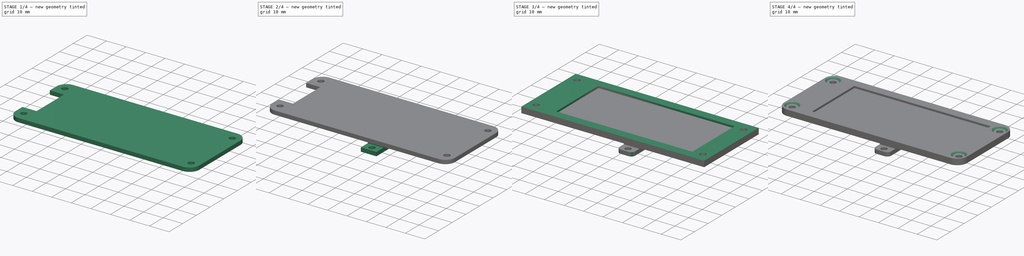
[diagram: build sequence overview — one tinted view per stage of 4, left to right]
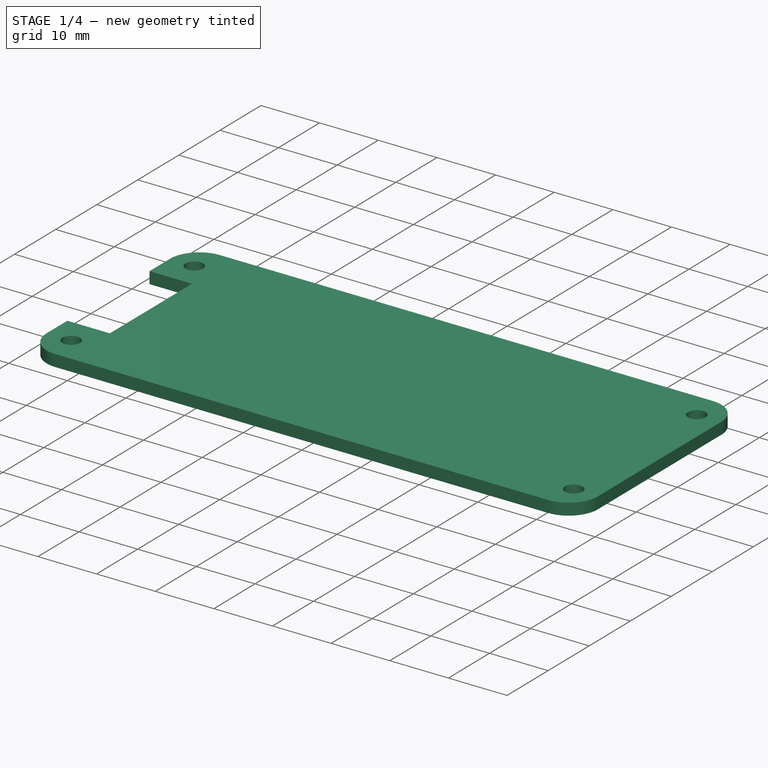
[diagram: stage 1 of 4 — iso view after this stage's code; geometry added in this stage tinted green]
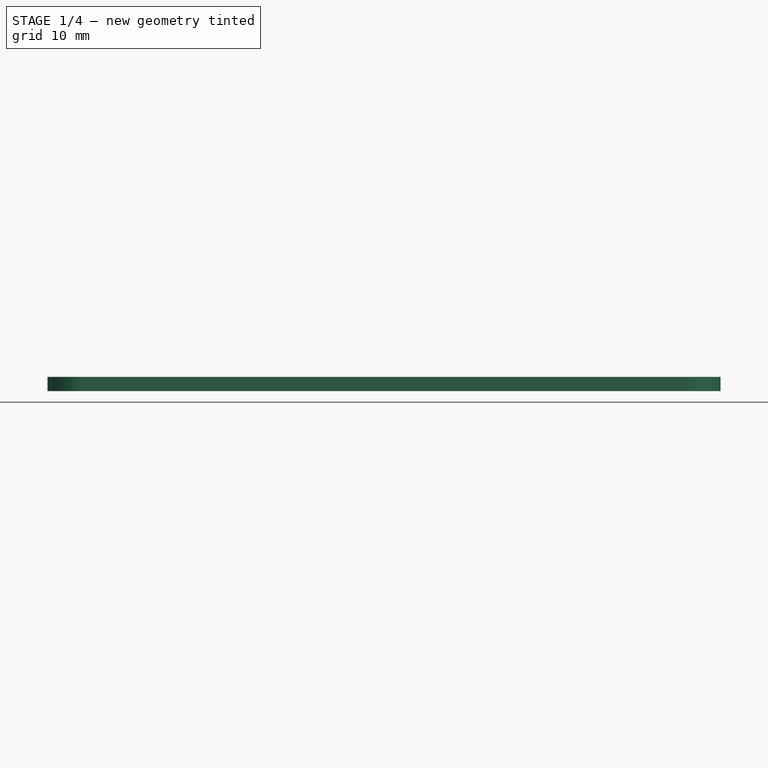
[diagram: stage 1 of 4 — front view after this stage's code; geometry added in this stage tinted green]
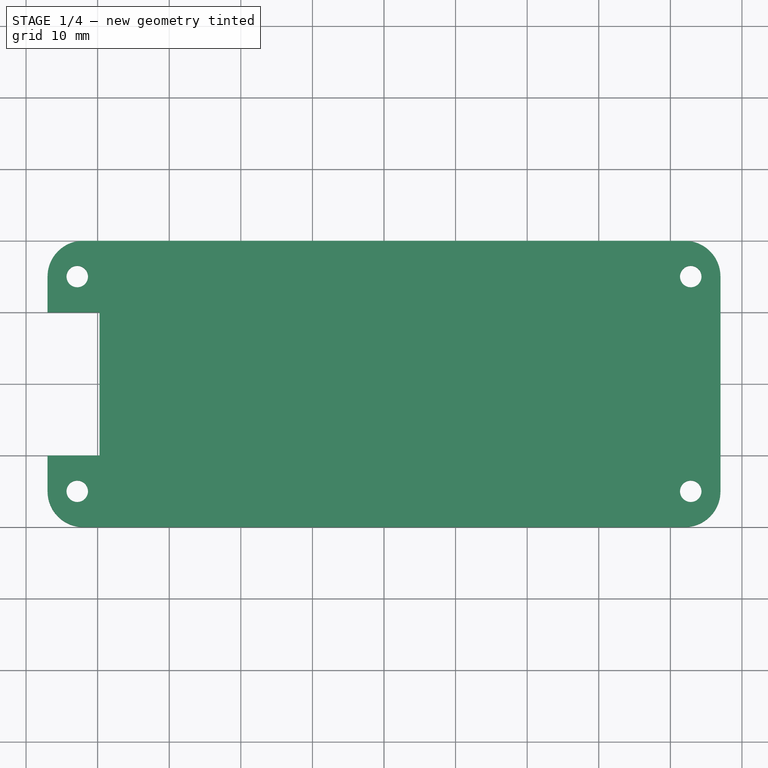
[diagram: stage 1 of 4 — top view after this stage's code; geometry added in this stage tinted green]
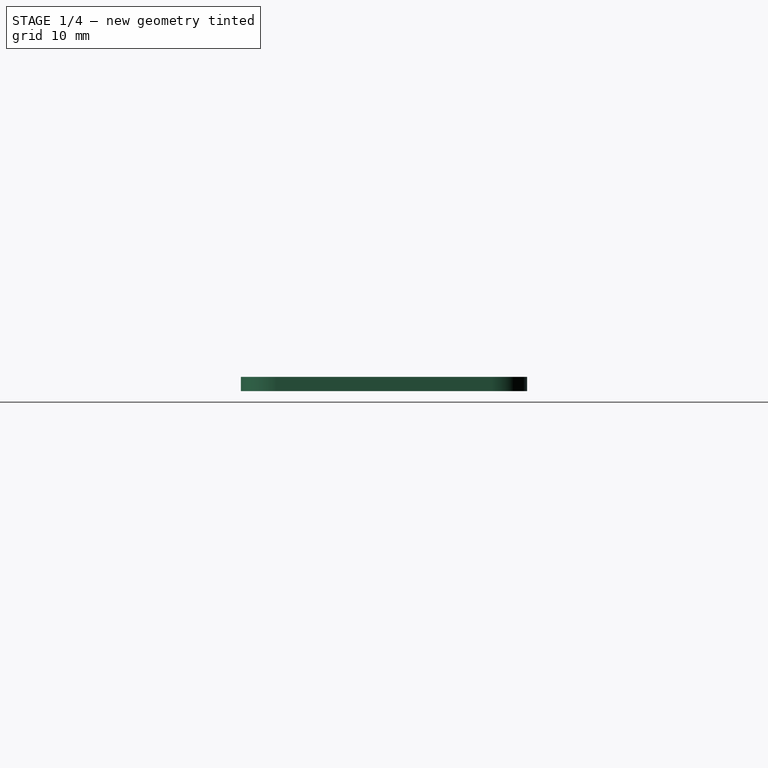
[diagram: stage 1 of 4 — right view after this stage's code; geometry added in this stage tinted green]
FCSTD DOCUMENT  (FreeCAD 0.19R)
Label: Assemblage_PCB_ecran
License: All rights reserved
LicenseURL: http://en.wikipedia.org/wiki/All_rights_reserved
objects: Sketcher::SketchObject×13, PartDesign::Pad×8, PartDesign::Fillet×6, PartDesign::Pocket×5, PartDesign::Body×5, PartDesign::Chamfer×1, App::VRMLObject×1
note: 58 computed .brp shape members not serialized (recipe doc carries the construction recipe); baked Part::Feature solids carry a one-line shape summary decoded from their .brp

FEATURE [Sketcher::SketchObject] Sketch
  FullyConstrained = true
  MapMode = 5
  Support = -> [XY_Plane]
  sketch-geometry (17):
    g0: LineSegment StartX=-47 StartY=20 StartZ=0 EndX=47 EndY=20 EndZ=0
    g1: LineSegment StartX=47 StartY=20 StartZ=0 EndX=47 EndY=-20 EndZ=0
    g2: LineSegment StartX=47 StartY=-20 StartZ=0 EndX=-47 EndY=-20 EndZ=0
    g3: LineSegment StartX=-39.75 StartY=18.75 StartZ=0 EndX=39.75 EndY=18.75 EndZ=0
    g4: LineSegment StartX=39.75 StartY=18.75 StartZ=0 EndX=39.75 EndY=-18.75 EndZ=0
    g5: LineSegment StartX=39.75 StartY=-18.75 StartZ=0 EndX=-39.75 EndY=-18.75 EndZ=0
    g6: LineSegment StartX=-39.75 StartY=-18.75 StartZ=0 EndX=-39.75 EndY=18.75 EndZ=0
    g7: Circle CenterX=-42.85 CenterY=15 CenterZ=0 NormalX=0 NormalY=0 NormalZ=1 AngleXU=0 Radius=1.5
    g8: Circle CenterX=-42.85 CenterY=-15 CenterZ=0 NormalX=0 NormalY=0 NormalZ=1 AngleXU=0 Radius=1.5
    g9: Circle CenterX=42.85 CenterY=-15 CenterZ=0 NormalX=0 NormalY=0 NormalZ=1 AngleXU=0 Radius=1.5
    g10: Circle CenterX=42.85 CenterY=15 CenterZ=0 NormalX=0 NormalY=0 NormalZ=1 AngleXU=0 Radius=1.5
    g11: Circle CenterX=-42.85 CenterY=15 CenterZ=0 NormalX=0 NormalY=0 NormalZ=1 AngleXU=0 Radius=3
    g12: LineSegment StartX=-47 StartY=20 StartZ=0 EndX=-47 EndY=10 EndZ=0
    g13: LineSegment StartX=-47 StartY=10 StartZ=0 EndX=-39.75 EndY=10 EndZ=0
    g14: LineSegment StartX=-39.75 StartY=10 StartZ=0 EndX=-39.75 EndY=-10 EndZ=0
    g15: LineSegment StartX=-39.75 StartY=-10 StartZ=0 EndX=-47 EndY=-10 EndZ=0
    g16: LineSegment StartX=-47 StartY=-10 StartZ=0 EndX=-47 EndY=-20 EndZ=0
  constraints (44):
    c: Coincident(g0,g1)
    c: Coincident(g1,g2)
    c: Horizontal(g0)
    c: Horizontal(g2)
    c: Vertical(g1)
    c: Symmetric(g0,g1,g-1)
    c: DistanceY(g1,g1) = 40
    c: DistanceX(g0,g0) = 94
    c: Coincident(g3,g4)
    c: Coincident(g4,g5)
    c: Coincident(g5,g6)
    c: Coincident(g6,g3)
    c: Horizontal(g3)
    c: Horizontal(g5)
    c: Vertical(g4)
    c: Vertical(g6)
    c: Symmetric(g3,g4,g-1)
    c: DistanceY(g6,g6) = 37.5
    c: DistanceX(g3,g3) = 79.5
    c: Radius(g10) = 1.5
    c: Equal(g10,g9)
    c: Equal(g10,g8)
    c: Equal(g10,g7)
    c: Symmetric(g7,g8,g-1)
    c: Symmetric(g10,g9,g-1)
    c: Symmetric(g10,g7,g-2)
    c: Coincident(g11,g7)
    c: Radius(g11) = 3
    c: Coincident(g0,g12)
    c: Vertical(g12)
    c: Coincident(g12,g13)
    c: Horizontal(g13)
    c: Coincident(g13,g14)
    c: Vertical(g14)
    c: Coincident(g14,g15)
    c: Horizontal(g15)
    c: Coincident(g15,g16)
    c: Coincident(g16,g2)
    c: Vertical(g16)
    c: Symmetric(g15,g12,g-1)
    c: PointOnObject(g13,g6)
    c: DistanceY(g14,g14) = 20
    c: DistanceY(g-1,g7) = 15
    c: DistanceX(g-2,g7) = -42.85
FEATURE [PartDesign::Pad] Pad
  AllowMultiFace = false
  Direction = (1,1,1)
  Length = 2
  Length2 = 100
  Profile = -> Sketch
  Type = 0
FEATURE [PartDesign::Fillet] Fillet001
  Base = -> Pad [Edge8,Edge5,Edge11,Edge1]
  BaseFeature = -> Pad
  Radius = 5
  SupportTransform = false
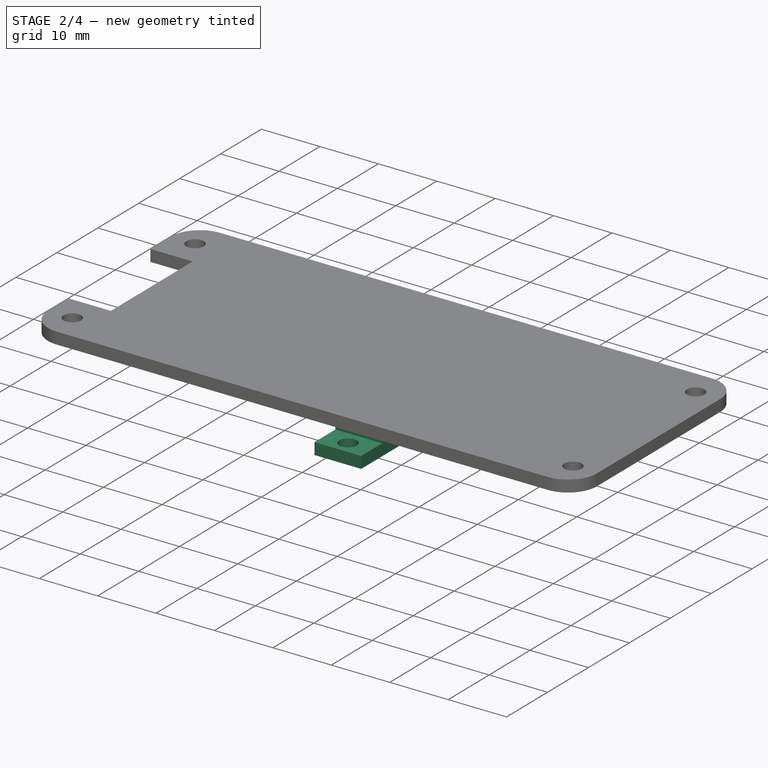
[diagram: stage 2 of 4 — iso view after this stage's code; geometry added in this stage tinted green]
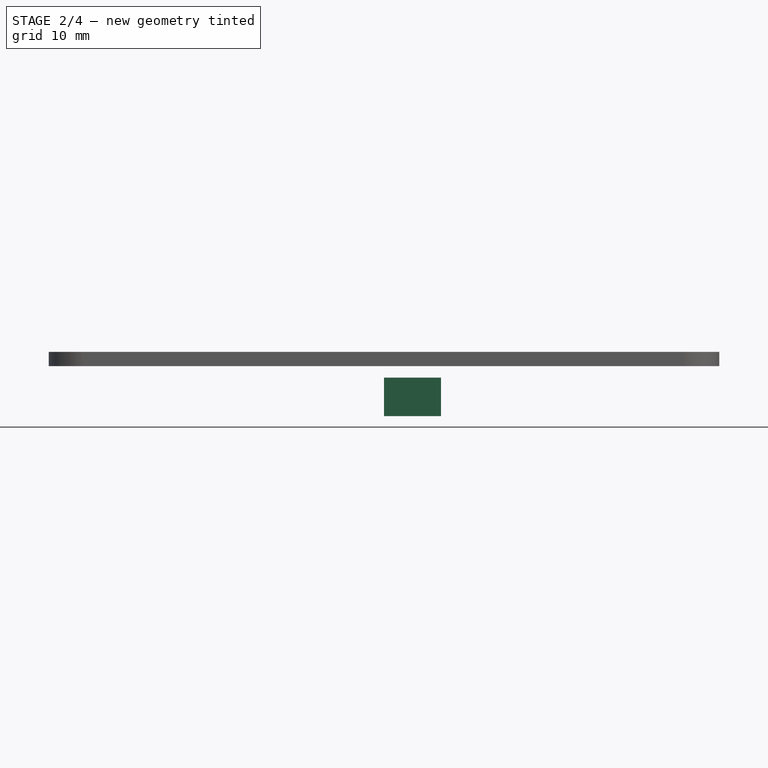
[diagram: stage 2 of 4 — front view after this stage's code; geometry added in this stage tinted green]
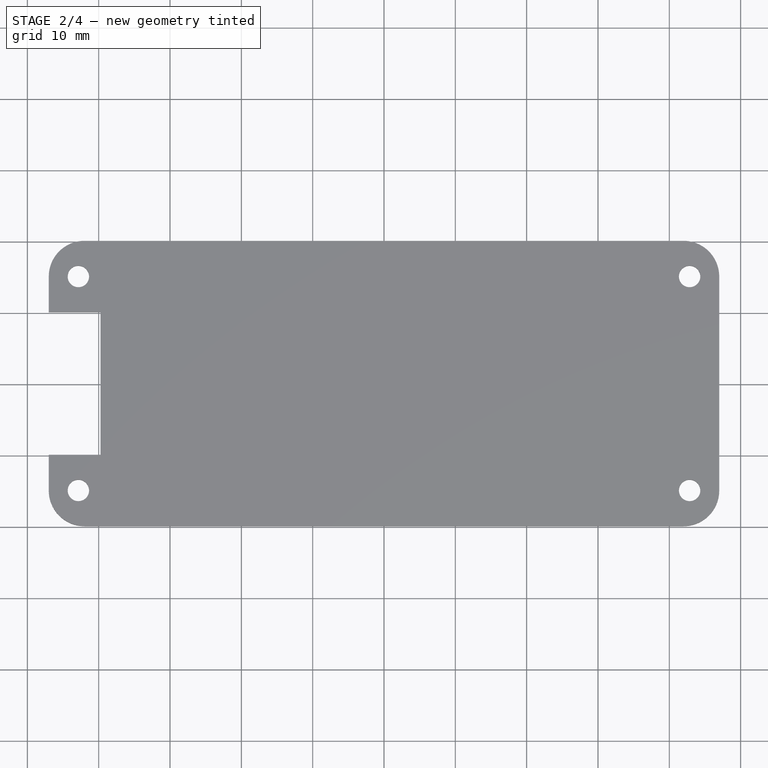
[diagram: stage 2 of 4 — top view after this stage's code; geometry added in this stage tinted green]
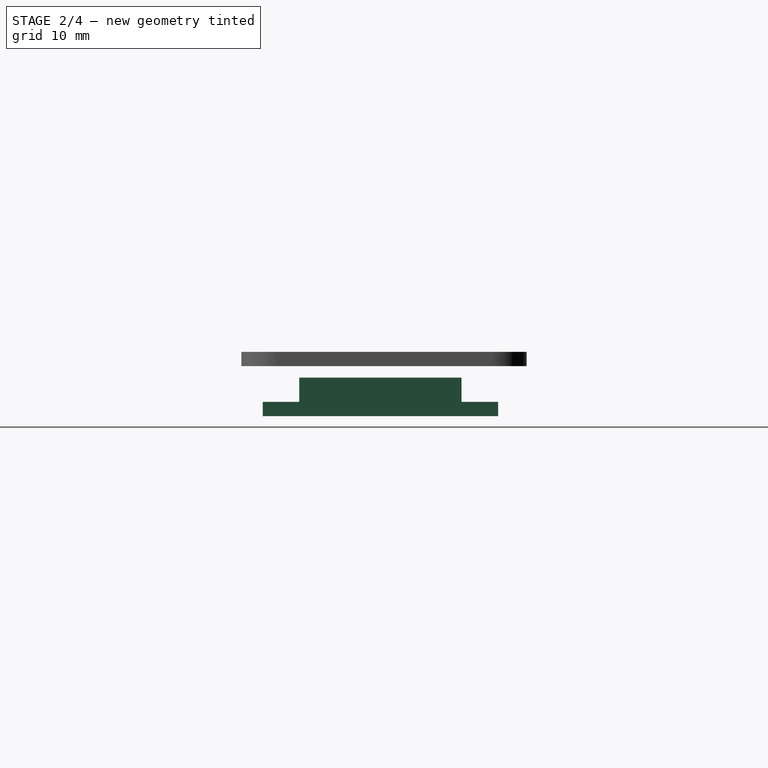
[diagram: stage 2 of 4 — right view after this stage's code; geometry added in this stage tinted green]
FEATURE [PartDesign::Body] Body001  label="Devant"
  Group = -> [Sketch001,Pad001,Sketch002,Pocket,Fillet,Chamfer]
  Origin = -> Origin001
  Placement = pos=(0,5,2) rot=(0,0,1;0rad)
  Tip = -> Chamfer
FEATURE [Sketcher::SketchObject] Sketch003
  ExternalGeometry = -> [Fillet001]
  FullyConstrained = true
  MapMode = 5
  Placement = pos=(0,0,0) rot=(1,0,0;3.14159rad)
  Support = -> [Fillet001]
  sketch-geometry (4):
    g0: LineSegment StartX=-38.75 StartY=12 StartZ=0 EndX=3.25 EndY=12 EndZ=0
    g1: LineSegment StartX=3.25 StartY=12 StartZ=0 EndX=3.25 EndY=-11 EndZ=0
    g2: LineSegment StartX=3.25 StartY=-11 StartZ=0 EndX=-38.75 EndY=-11 EndZ=0
    g3: LineSegment StartX=-38.75 StartY=-11 StartZ=0 EndX=-38.75 EndY=12 EndZ=0
  constraints (12):
    c: Coincident(g0,g1)
    c: Coincident(g1,g2)
    c: Coincident(g2,g3)
    c: Coincident(g3,g0)
    c: Horizontal(g0)
    c: Horizontal(g2)
    c: Vertical(g1)
    c: Vertical(g3)
    c: DistanceY(g1,g1) = 23
    c: DistanceX(g0,g0) = 42
    c: DistanceY(g-1,g0) = 12
    c: Distance(g0,g-3) = 1
FEATURE [PartDesign::Pocket] Pocket001
  AllowMultiFace = false
  BaseFeature = -> Fillet001
  Length = 1.5
  Length2 = 100
  Profile = -> Sketch003
  Type = 0
FEATURE [Sketcher::SketchObject] Sketch005
  FullyConstrained = false
  MapMode = 5
  Placement = pos=(0,0,0) rot=(0.57735,0.57735,0.57735;2.0944rad)
  Support = -> [YZ_Plane002]
  sketch-geometry (8):
    g0: LineSegment StartX=-17 StartY=-5 StartZ=0 EndX=-11.875 EndY=-5 EndZ=0
    g1: LineSegment StartX=-11.875 StartY=-5 StartZ=0 EndX=-11.875 EndY=-1.6 EndZ=0
    g2: LineSegment StartX=-11.875 StartY=-1.6 StartZ=0 EndX=10.875 EndY=-1.6 EndZ=0
    g3: LineSegment StartX=10.875 StartY=-1.6 StartZ=0 EndX=10.875 EndY=-5 EndZ=0
    g4: LineSegment StartX=10.875 StartY=-5 StartZ=0 EndX=16 EndY=-5 EndZ=0
    g5: LineSegment StartX=16 StartY=-5 StartZ=0 EndX=16 EndY=-7 EndZ=0
    g6: LineSegment StartX=16 StartY=-7 StartZ=0 EndX=-17 EndY=-7 EndZ=0
    g7: LineSegment StartX=-17 StartY=-7 StartZ=0 EndX=-17 EndY=-5 EndZ=0
  constraints (24):
    c: Horizontal(g0)
    c: Coincident(g0,g1)
    c: Vertical(g1)
    c: Coincident(g1,g2)
    c: Horizontal(g2)
    c: Coincident(g2,g3)
    c: Vertical(g3)
    c: Coincident(g3,g4)
    c: Horizontal(g4)
    c: Coincident(g4,g5)
    c: Vertical(g5)
    c: Coincident(g5,g6)
    c: Horizontal(g6)
    c: Coincident(g6,g7)
    c: Coincident(g7,g0)
    c: Vertical(g7)
    c: DistanceY(g7,g7) = 2
    c: DistanceY(g1,g1) = 3.4
    c: DistanceX(g2,g2) = 22.75
    c: DistanceX(g0,g0) = 5.125
    c: Equal(g0,g4)
    c: Equal(g5,g7)
    c: DistanceY(g-1,g0) = -5
    c: DistanceX(g-2,g6) = -17
FEATURE [PartDesign::Pad] Pad003
  AllowMultiFace = false
  Direction = (1,1,1)
  Length = 8
  Length2 = 100
  Placement = pos=(0,0,0) rot=(0.57735,0.57735,0.57735;2.0944rad)
  Profile = -> Sketch005
  Type = 0
FEATURE [Sketcher::SketchObject] Sketch006
  ExternalGeometry = -> [Pad003]
  FullyConstrained = false
  MapMode = 5
  Placement = pos=(2e-15,-3.1e-15,-7) rot=(0.707107,0.707107,0;3.14159rad)
  Support = -> [Pad003]
  sketch-geometry (2):
    g0: Circle CenterX=-14.5 CenterY=4 CenterZ=0 NormalX=0 NormalY=0 NormalZ=1 AngleXU=0 Radius=1.5
    g1: Circle CenterX=13.5 CenterY=4 CenterZ=0 NormalX=0 NormalY=0 NormalZ=1 AngleXU=0 Radius=1.5
  constraints (6):
    c: Radius(g1) = 1.5
    c: Equal(g1,g0)
    c: DistanceY(g-1,g1) = 4
    c: DistanceY(g-1,g0) = 4
    c: Distance(g0,g-3) = 2.5
    c: Distance(g1,g-4) = 2.5
FEATURE [PartDesign::Pocket] Pocket002
  AllowMultiFace = false
  BaseFeature = -> Pad003
  Length = 5
  Length2 = 100
  Placement = pos=(0,0,0) rot=(0.57735,0.57735,0.57735;2.0944rad)
  Profile = -> Sketch006
  Type = 0
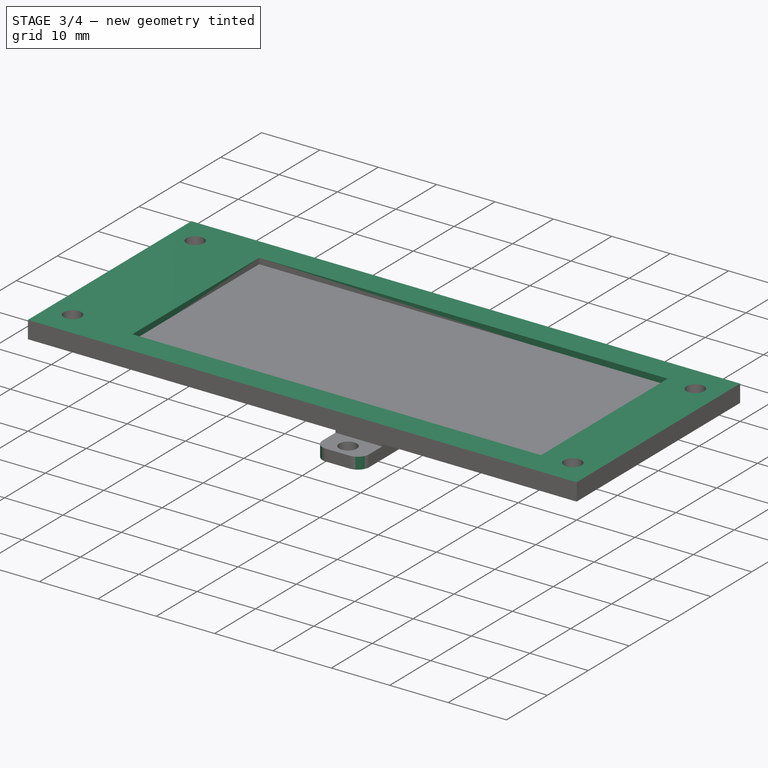
[diagram: stage 3 of 4 — iso view after this stage's code; geometry added in this stage tinted green]
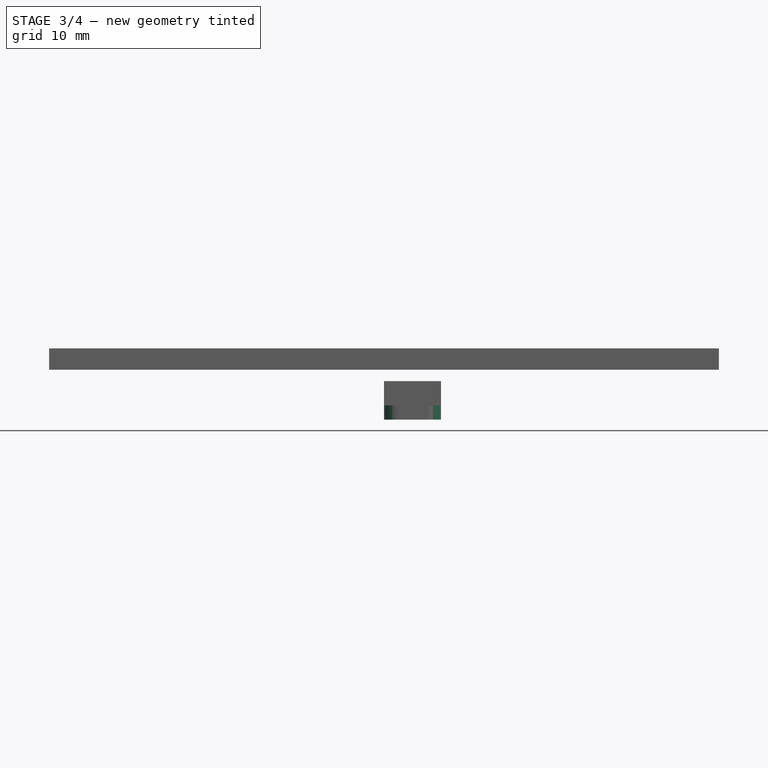
[diagram: stage 3 of 4 — front view after this stage's code; geometry added in this stage tinted green]
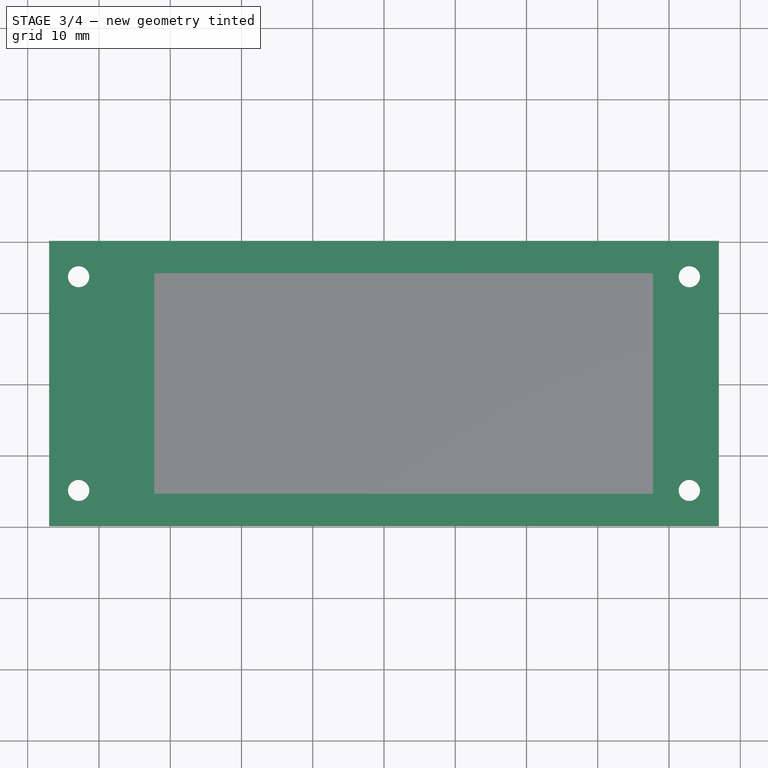
[diagram: stage 3 of 4 — top view after this stage's code; geometry added in this stage tinted green]
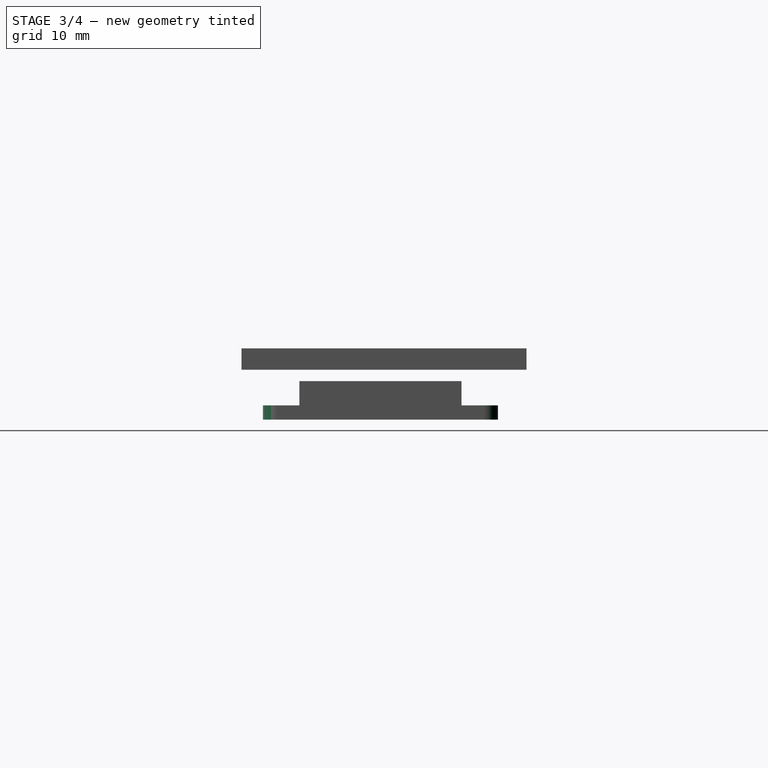
[diagram: stage 3 of 4 — right view after this stage's code; geometry added in this stage tinted green]
FEATURE [Sketcher::SketchObject] Sketch001
  FullyConstrained = true
  MapMode = 5
  Support = -> [XY_Plane001]
  sketch-geometry (16):
    g0: LineSegment StartX=-47 StartY=20 StartZ=0 EndX=47 EndY=20 EndZ=0
    g1: LineSegment StartX=47 StartY=20 StartZ=0 EndX=47 EndY=-20 EndZ=0
    g2: LineSegment StartX=47 StartY=-20 StartZ=0 EndX=-47 EndY=-20 EndZ=0
    g3: LineSegment StartX=-47 StartY=-20 StartZ=0 EndX=-47 EndY=20 EndZ=0
    g4: Circle CenterX=-42.85 CenterY=15 CenterZ=0 NormalX=0 NormalY=0 NormalZ=1 AngleXU=0 Radius=1.5
    g5: Circle CenterX=-42.85 CenterY=-15 CenterZ=0 NormalX=0 NormalY=0 NormalZ=1 AngleXU=0 Radius=1.5
    g6: Circle CenterX=42.85 CenterY=15 CenterZ=0 NormalX=0 NormalY=0 NormalZ=1 AngleXU=0 Radius=1.5
    g7: Circle CenterX=42.85 CenterY=-15 CenterZ=0 NormalX=0 NormalY=0 NormalZ=1 AngleXU=0 Radius=1.5
    g8: LineSegment StartX=-32.25 StartY=15.5 StartZ=0 EndX=37.75 EndY=15.5 EndZ=0
    g9: LineSegment StartX=37.75 StartY=15.5 StartZ=0 EndX=37.75 EndY=-15.5 EndZ=0
    g10: LineSegment StartX=37.75 StartY=-15.5 StartZ=0 EndX=-32.25 EndY=-15.5 EndZ=0
    g11: LineSegment StartX=-32.25 StartY=-15.5 StartZ=0 EndX=-32.25 EndY=15.5 EndZ=0
    g12: LineSegment StartX=-39.75 StartY=18.75 StartZ=0 EndX=39.75 EndY=18.75 EndZ=0
    g13: LineSegment StartX=39.75 StartY=18.75 StartZ=0 EndX=39.75 EndY=-18.75 EndZ=0
    g14: LineSegment StartX=39.75 StartY=-18.75 StartZ=0 EndX=-39.75 EndY=-18.75 EndZ=0
    g15: LineSegment StartX=-39.75 StartY=-18.75 StartZ=0 EndX=-39.75 EndY=18.75 EndZ=0
  constraints (42):
    c: Coincident(g0,g1)
    c: Coincident(g1,g2)
    c: Coincident(g2,g3)
    c: Coincident(g3,g0)
    c: Horizontal(g0)
    c: Horizontal(g2)
    c: Vertical(g1)
    c: Vertical(g3)
    c: Symmetric(g1,g0,g-1)
    c: DistanceX(g0,g0) = 94
    c: DistanceY(g3,g3) = 40
    c: Radius(g4) = 1.5
    c: Equal(g4,g6)
    c: Equal(g4,g5)
    c: Equal(g4,g7)
    c: Symmetric(g5,g4,g-1)
    c: Symmetric(g6,g7,g-1)
    c: Symmetric(g4,g6,g-2)
    c: DistanceY(g-1,g4) = 15
    c: DistanceX(g-2,g4) = -42.85
    c: Coincident(g8,g9)
    c: Coincident(g9,g10)
    c: Coincident(g10,g11)
    c: Coincident(g11,g8)
    c: Horizontal(g8)
    c: Horizontal(g10)
    c: Vertical(g11)
    c: DistanceY(g9,g9) = 31
    c: DistanceX(g8,g8) = 70
    c: Symmetric(g8,g9,g-1)
    c: Coincident(g12,g13)
    c: Coincident(g13,g14)
    c: Coincident(g14,g15)
    c: Coincident(g15,g12)
    c: Horizontal(g12)
    c: Horizontal(g14)
    c: Vertical(g13)
    c: Vertical(g15)
    c: DistanceX(g12,g12) = 79.5
    c: Symmetric(g12,g13,g-1)
    c: DistanceY(g15,g15) = 37.5
    c: Distance(g8,g13) = 2
FEATURE [PartDesign::Pad] Pad001
  AllowMultiFace = false
  Direction = (1,1,1)
  Length = 3
  Length2 = 100
  Profile = -> Sketch001
  Type = 0
FEATURE [Sketcher::SketchObject] Sketch002
  FullyConstrained = true
  MapMode = 5
  Placement = pos=(0,0,0) rot=(1,0,0;3.14159rad)
  Support = -> [Pad001]
  sketch-geometry (4):
    g0: LineSegment StartX=-39.75 StartY=18.75 StartZ=0 EndX=39.75 EndY=18.75 EndZ=0
    g1: LineSegment StartX=39.75 StartY=18.75 StartZ=0 EndX=39.75 EndY=-18.75 EndZ=0
    g2: LineSegment StartX=39.75 StartY=-18.75 StartZ=0 EndX=-39.75 EndY=-18.75 EndZ=0
    g3: LineSegment StartX=-39.75 StartY=-18.75 StartZ=0 EndX=-39.75 EndY=18.75 EndZ=0
  constraints (11):
    c: Coincident(g0,g1)
    c: Coincident(g1,g2)
    c: Coincident(g2,g3)
    c: Coincident(g3,g0)
    c: Horizontal(g0)
    c: Horizontal(g2)
    c: Vertical(g1)
    c: Vertical(g3)
    c: DistanceY(g1,g1) = 37.5
    c: DistanceX(g0,g0) = 79.5
    c: Symmetric(g0,g2,g-1)
FEATURE [PartDesign::Pocket] Pocket
  AllowMultiFace = false
  BaseFeature = -> Pad001
  Length = 1.5
  Length2 = 100
  Profile = -> Sketch002
  Type = 0
FEATURE [PartDesign::Fillet] Fillet003
  Base = -> Pocket002 [Edge8,Edge7,Edge19,Edge13]
  BaseFeature = -> Pocket002
  Placement = pos=(0,0,0) rot=(0.57735,0.57735,0.57735;2.0944rad)
  Radius = 2
  SupportTransform = false
FEATURE [PartDesign::Body] Body002  label="Attache"
  Group = -> [Sketch005,Pad003,Sketch006,Pocket002,Fillet003]
  Origin = -> Origin002
  Placement = pos=(-13.25,5,0) rot=(0,0,1;0rad)
  Tip = -> Fillet003
FEATURE [App::VRMLObject] CroqueLivreSaintGerard2021_V1
  Placement = pos=(-149.3,98.8,-25.8) rot=(0,0,1;0rad)
  Resources = CroqueLivreSaintGerard2021_V1/CP_Radial_D12.5mm_P5.00mm.wrl | CroqueLivreSaintGerard2021_V1/ | CroqueLivreSaintGerard2021_V1/ | CroqueLivreSaintGerard2021_V1/ | CroqueLivreSaintGerard2021_V1/ | CroqueLivreSaintGerard2021_V1/ | CroqueLivreSaintGerard2021_V1/ | CroqueLivreSaintGerard2021_V1/ | CroqueLivreSaintGerard2021_V1/ | CroqueLivreSaintGerard2021_V1/ | CroqueLivreSaintGerard2021_V1/ | CroqueLivreSaintGerard2021_V1/
FEATURE [Sketcher::SketchObject] Sketch012
  FullyConstrained = true
  MapMode = 5
  Support = -> [XY_Plane006]
  sketch-geometry (16):
    g0: LineSegment StartX=-42.5 StartY=27.5 StartZ=0 EndX=-50.5 EndY=27.5 EndZ=0
    g1: LineSegment StartX=-50.5 StartY=27.5 StartZ=0 EndX=-50.5 EndY=-27.5 EndZ=0
    g2: LineSegment StartX=-50.5 StartY=-27.5 StartZ=0 EndX=-42.5 EndY=-27.5 EndZ=0
    g3: LineSegment StartX=-42.5 StartY=-27.5 StartZ=0 EndX=-42.5 EndY=-19 EndZ=0
    g4: LineSegment StartX=-42.5 StartY=-19 StartZ=0 EndX=-39.35 EndY=-19 EndZ=0
    g5: LineSegment StartX=-39.35 StartY=-19 StartZ=0 EndX=-39.35 EndY=-11 EndZ=0
    g6: LineSegment StartX=-39.35 StartY=-11 StartZ=0 EndX=-45.5 EndY=-11 EndZ=0
    g7: LineSegment StartX=-45.5 StartY=-11 StartZ=0 EndX=-45.5 EndY=11 EndZ=0
    g8: LineSegment StartX=-45.5 StartY=11 StartZ=0 EndX=-39.35 EndY=11 EndZ=0
    g9: LineSegment StartX=-39.35 StartY=11 StartZ=0 EndX=-39.35 EndY=19 EndZ=0
    g10: LineSegment StartX=-39.35 StartY=19 StartZ=0 EndX=-42.5 EndY=19 EndZ=0
    g11: LineSegment StartX=-42.5 StartY=19 StartZ=0 EndX=-42.5 EndY=27.5 EndZ=0
    g12: Circle CenterX=-46.5 CenterY=23.05 CenterZ=0 NormalX=0 NormalY=0 NormalZ=1 AngleXU=0 Radius=1.5
    g13: Circle CenterX=-46.5 CenterY=-23.05 CenterZ=0 NormalX=0 NormalY=0 NormalZ=1 AngleXU=0 Radius=1.5
    g14: Circle CenterX=-42.85 CenterY=15 CenterZ=0 NormalX=0 NormalY=0 NormalZ=1 AngleXU=0 Radius=1.5
    g15: Circle CenterX=-42.85 CenterY=-15 CenterZ=0 NormalX=0 NormalY=0 NormalZ=1 AngleXU=0 Radius=1.5
  constraints (43):
    c: Horizontal(g0)
    c: Coincident(g0,g1)
    c: Vertical(g1)
    c: Coincident(g1,g2)
    c: Horizontal(g2)
    c: Coincident(g2,g3)
    c: Vertical(g3)
    c: Coincident(g3,g4)
    c: Coincident(g4,g5)
    c: Vertical(g5)
    c: Coincident(g5,g6)
    c: Horizontal(g6)
    c: Coincident(g6,g7)
    c: Coincident(g7,g8)
    c: Horizontal(g8)
    c: Coincident(g8,g9)
    c: Vertical(g9)
    c: Coincident(g9,g10)
    c: Coincident(g10,g11)
    c: Coincident(g11,g0)
    c: Vertical(g11)
    c: Symmetric(g2,g0,g-1)
    c: Horizontal(g10)
    c: Symmetric(g9,g4,g-1)
    c: Symmetric(g6,g7,g-1)
    c: Horizontal(g4)
    c: DistanceX(g-2,g0) = -50.5
    c: DistanceX(g0,g0) = 8
    c: DistanceY(g9,g9) = 8
    c: Distance(g7,g1) = 5
    c: Radius(g13) = 1.5
    c: Equal(g13,g12)
    c: Distance(g12,g13) = 46.1
    c: Symmetric(g12,g13,g-1)
    c: Distance(g13,g1) = 4
    c: Symmetric(g15,g14,g-1)
    c: Radius(g14) = 1.5
    c: Equal(g14,g15)
    c: Distance(g14,g9) = 3.5
    c: DistanceX(g-2,g14) = -42.85
    c: DistanceY(g1,g1) = 55
    c: Distance(g14,g10) = 4
    c: DistanceY(g-1,g14) = 15
FEATURE [PartDesign::Pad] Pad006
  Direction = (1,1,1)
  Length = 10
  Length2 = 100
  Profile = -> Sketch012
  Type = 0
FEATURE [Sketcher::SketchObject] Sketch013
  ExternalGeometry = -> [Pad006]
  FullyConstrained = true
  MapMode = 5
  Placement = pos=(-50.5,0,0) rot=(0.57735,-0.57735,-0.57735;2.0944rad)
  Support = -> [Pad006]
  sketch-geometry (4):
    g0: LineSegment StartX=-10 StartY=10 StartZ=0 EndX=10 EndY=10 EndZ=0
    g1: LineSegment StartX=10 StartY=10 StartZ=0 EndX=10 EndY=5 EndZ=0
    g2: LineSegment StartX=10 StartY=5 StartZ=0 EndX=-10 EndY=5 EndZ=0
    g3: LineSegment StartX=-10 StartY=5 StartZ=0 EndX=-10 EndY=10 EndZ=0
  constraints (11):
    c: Coincident(g0,g1)
    c: Coincident(g1,g2)
    c: Coincident(g2,g3)
    c: Coincident(g3,g0)
    c: Horizontal(g2)
    c: Vertical(g1)
    c: Vertical(g3)
    c: DistanceY(g3,g3) = 5
    c: Symmetric(g0,g0,g-2)
    c: DistanceX(g0,g0) = 20
    c: PointOnObject(g0,g-3)
FEATURE [PartDesign::Pocket] Pocket003
  BaseFeature = -> Pad006
  Length = 6
  Length2 = 100
  Profile = -> Sketch013
  Type = 0
FEATURE [Sketcher::SketchObject] Sketch014
  ExternalGeometry = -> [Pocket003]
  FullyConstrained = true
  MapMode = 5
  Placement = pos=(0,0,0) rot=(1,0,0;3.14159rad)
  Support = -> [Pocket003]
  sketch-geometry (10):
    g0: Circle CenterX=-46.5 CenterY=-23.05 CenterZ=0 NormalX=0 NormalY=0 NormalZ=1 AngleXU=0 Radius=1.5
    g1: Circle CenterX=-46.5 CenterY=23.05 CenterZ=0 NormalX=0 NormalY=0 NormalZ=1 AngleXU=0 Radius=1.5
    g2: LineSegment StartX=-50.5 StartY=27.5 StartZ=0 EndX=-42.5 EndY=27.5 EndZ=0
    g3: LineSegment StartX=-42.5 StartY=27.5 StartZ=0 EndX=-42.5 EndY=19 EndZ=0
    g4: LineSegment StartX=-42.5 StartY=19 StartZ=0 EndX=-50.5 EndY=19 EndZ=0
    g5: LineSegment StartX=-50.5 StartY=19 StartZ=0 EndX=-50.5 EndY=27.5 EndZ=0
    g6: LineSegment StartX=-42.5 StartY=-19 StartZ=0 EndX=-50.5 EndY=-19 EndZ=0
    g7: LineSegment StartX=-50.5 StartY=-19 StartZ=0 EndX=-50.5 EndY=-27.5 EndZ=0
    g8: LineSegment StartX=-50.5 StartY=-27.5 StartZ=0 EndX=-42.5 EndY=-27.5 EndZ=0
    g9: LineSegment StartX=-42.5 StartY=-27.5 StartZ=0 EndX=-42.5 EndY=-19 EndZ=0
  constraints (27):
    c: Radius(g1) = 1.5
    c: Equal(g1,g0)
    c: Coincident(g2,g3)
    c: Coincident(g3,g4)
    c: Coincident(g4,g5)
    c: Coincident(g5,g2)
    c: Horizontal(g2)
    c: Horizontal(g4)
    c: Vertical(g3)
    c: Vertical(g5)
    c: Coincident(g6,g7)
    c: Coincident(g7,g8)
    c: Coincident(g8,g9)
    c: Coincident(g9,g6)
    c: Horizontal(g6)
    c: Horizontal(g8)
    c: Vertical(g7)
    c: Vertical(g9)
    c: Coincident(g2,g-3)
    c: Coincident(g7,g-3)
    c: DistanceX(g2,g2) = 8
    c: Equal(g8,g2)
    c: Distance(g1,g5) = 4
    c: Distance(g1,g2) = 4.45
    c: PointOnObject(g3,g-4)
    c: Equal(g7,g5)
    c: Symmetric(g0,g1,g-1)
FEATURE [PartDesign::Pad] Pad007
  BaseFeature = -> Pocket003
  Direction = (1,1,1)
  Length = 15
  Length2 = 100
  Profile = -> Sketch014
  Type = 0
FEATURE [Sketcher::SketchObject] Sketch015
  ExternalGeometry = -> [Pocket001]
  FullyConstrained = true
  MapMode = 5
  Placement = pos=(0,0,0) rot=(1,0,0;3.14159rad)
  Support = -> [Pocket001]
  sketch-geometry (12):
    g0: LineSegment StartX=-38.75 StartY=12 StartZ=0 EndX=3.25 EndY=12 EndZ=0
    g1: LineSegment StartX=3.25 StartY=12 StartZ=0 EndX=3.25 EndY=17 EndZ=0
    g2: LineSegment StartX=3.25 StartY=17 StartZ=0 EndX=-38.75 EndY=17 EndZ=0
    g3: LineSegment StartX=-38.75 StartY=17 StartZ=0 EndX=-38.75 EndY=12 EndZ=0
    g4: LineSegment StartX=-38.75 StartY=-11 StartZ=0 EndX=3.25 EndY=-11 EndZ=0
    g5: LineSegment StartX=3.25 StartY=-11 StartZ=0 EndX=3.25 EndY=-16 EndZ=0
    g6: LineSegment StartX=3.25 StartY=-16 StartZ=0 EndX=-38.75 EndY=-16 EndZ=0
    g7: LineSegment StartX=-38.75 StartY=-16 StartZ=0 EndX=-38.75 EndY=-11 EndZ=0
    g8: Circle CenterX=-26.25 CenterY=14.5 CenterZ=0 NormalX=0 NormalY=0 NormalZ=1 AngleXU=0 Radius=1.5
    g9: Circle CenterX=-26.25 CenterY=-13.5 CenterZ=0 NormalX=0 NormalY=0 NormalZ=1 AngleXU=0 Radius=1.5
    g10: Circle CenterX=-9.25 CenterY=14.5 CenterZ=0 NormalX=0 NormalY=0 NormalZ=1 AngleXU=0 Radius=1.5
    g11: Circle CenterX=-9.25 CenterY=-13.5 CenterZ=0 NormalX=0 NormalY=0 NormalZ=1 AngleXU=0 Radius=1.5
  constraints (32):
    c: Coincident(g0,g1)
    c: Coincident(g1,g2)
    c: Coincident(g2,g3)
    c: Coincident(g3,g0)
    c: Horizontal(g2)
    c: Vertical(g1)
    c: Vertical(g3)
    c: Coincident(g0,g-3)
    c: Coincident(g4,g5)
    c: Coincident(g5,g6)
    c: Coincident(g6,g7)
    c: Coincident(g7,g4)
    c: Horizontal(g6)
    c: Vertical(g5)
    c: Vertical(g7)
    c: Coincident(g4,g-4)
    c: Coincident(g4,g-4)
    c: Coincident(g0,g-3)
    c: Equal(g1,g5)
    c: DistanceY(g1,g1) = 5
    c: Radius(g11) = 1.5
    c: Equal(g11,g10)
    c: Equal(g11,g8)
    c: Equal(g11,g9)
    c: Distance(g8,g0) = 2.5
    c: Distance(g10,g0) = 2.5
    c: Distance(g8,g3) = 12.5
    c: Distance(g10,g1) = 12.5
    c: Distance(g9,g4) = 2.5
    c: Distance(g11,g4) = 2.5
    c: Distance(g9,g7) = 12.5
    c: Distance(g11,g5) = 12.5
FEATURE [PartDesign::Pad] Pad008
  BaseFeature = -> Pocket001
  Direction = (1,1,1)
  Length = 5
  Length2 = 100
  Profile = -> Sketch015
  Type = 0
FEATURE [PartDesign::Fillet] Fillet004
  Base = -> Pad008 [Edge55,Edge68,Edge58,Edge66]
  BaseFeature = -> Pad008
  Radius = 4
  SupportTransform = false
FEATURE [PartDesign::Body] Body  label="Plaque"
  Group = -> [Sketch,Pad,Fillet001,Sketch003,Pocket001,Sketch015,Pad008,Fillet004]
  Origin = -> Origin
  Placement = pos=(0,5,0) rot=(0,0,1;0rad)
  Tip = -> Fillet004
FEATURE [PartDesign::Fillet] Fillet005
  Base = -> Pad007 [Edge17,Edge44]
  BaseFeature = -> Pad007
  Radius = 4
  SupportTransform = false
FEATURE [PartDesign::Body] Body006  label="Support_ecran_PCB"
  Group = -> [Sketch012,Pad006,Sketch013,Pocket003,Sketch014,Pad007,Fillet005]
  Origin = -> Origin006
  Placement = pos=(0,5,-10) rot=(0,0,1;0rad)
  Tip = -> Fillet005
FEATURE [Sketcher::SketchObject] Sketch016
  FullyConstrained = true
  MapMode = 5
  Support = -> [XY_Plane007]
  sketch-geometry (16):
    g0: LineSegment StartX=-42.5 StartY=27.5 StartZ=0 EndX=-50.5 EndY=27.5 EndZ=0
    g1: LineSegment StartX=-50.5 StartY=27.5 StartZ=0 EndX=-50.5 EndY=-27.5 EndZ=0
    g2: LineSegment StartX=-50.5 StartY=-27.5 StartZ=0 EndX=-42.5 EndY=-27.5 EndZ=0
    g3: LineSegment StartX=-42.5 StartY=-27.5 StartZ=0 EndX=-42.5 EndY=-19 EndZ=0
    g4: LineSegment StartX=-42.5 StartY=-19 StartZ=0 EndX=-39.35 EndY=-19 EndZ=0
    g5: LineSegment StartX=-39.35 StartY=-19 StartZ=0 EndX=-39.35 EndY=-11 EndZ=0
    g6: LineSegment StartX=-39.35 StartY=-11 StartZ=0 EndX=-45.5 EndY=-11 EndZ=0
    g7: LineSegment StartX=-45.5 StartY=-11 StartZ=0 EndX=-45.5 EndY=11 EndZ=0
    g8: LineSegment StartX=-45.5 StartY=11 StartZ=0 EndX=-39.35 EndY=11 EndZ=0
    g9: LineSegment StartX=-39.35 StartY=11 StartZ=0 EndX=-39.35 EndY=19 EndZ=0
    g10: LineSegment StartX=-39.35 StartY=19 StartZ=0 EndX=-42.5 EndY=19 EndZ=0
    g11: LineSegment StartX=-42.5 StartY=19 StartZ=0 EndX=-42.5 EndY=27.5 EndZ=0
    g12: Circle CenterX=-46.5 CenterY=23.05 CenterZ=0 NormalX=0 NormalY=0 NormalZ=1 AngleXU=0 Radius=1.5
    g13: Circle CenterX=-46.5 CenterY=-23.05 CenterZ=0 NormalX=0 NormalY=0 NormalZ=1 AngleXU=0 Radius=1.5
    g14: Circle CenterX=-42.85 CenterY=15 CenterZ=0 NormalX=0 NormalY=0 NormalZ=1 AngleXU=0 Radius=1.5
    g15: Circle CenterX=-42.85 CenterY=-15 CenterZ=0 NormalX=0 NormalY=0 NormalZ=1 AngleXU=0 Radius=1.5
  constraints (43):
    c: Horizontal(g0)
    c: Coincident(g0,g1)
    c: Vertical(g1)
    c: Coincident(g1,g2)
    c: Horizontal(g2)
    c: Coincident(g2,g3)
    c: Vertical(g3)
    c: Coincident(g3,g4)
    c: Coincident(g4,g5)
    c: Vertical(g5)
    c: Coincident(g5,g6)
    c: Horizontal(g6)
    c: Coincident(g6,g7)
    c: Coincident(g7,g8)
    c: Horizontal(g8)
    c: Coincident(g8,g9)
    c: Vertical(g9)
    c: Coincident(g9,g10)
    c: Coincident(g10,g11)
    c: Coincident(g11,g0)
    c: Vertical(g11)
    c: Symmetric(g2,g0,g-1)
    c: Horizontal(g10)
    c: Symmetric(g9,g4,g-1)
    c: Symmetric(g6,g7,g-1)
    c: Horizontal(g4)
    c: DistanceX(g-2,g0) = -50.5
    c: DistanceX(g0,g0) = 8
    c: DistanceY(g9,g9) = 8
    c: Distance(g7,g1) = 5
    c: Radius(g13) = 1.5
    c: Equal(g13,g12)
    c: Distance(g12,g13) = 46.1
    c: Symmetric(g12,g13,g-1)
    c: Distance(g13,g1) = 4
    c: Symmetric(g15,g14,g-1)
    c: Radius(g14) = 1.5
    c: Equal(g14,g15)
    c: Distance(g14,g9) = 3.5
    c: DistanceX(g-2,g14) = -42.85
    c: DistanceY(g1,g1) = 55
    c: Distance(g14,g10) = 4
    c: DistanceY(g-1,g14) = 15
FEATURE [PartDesign::Pad] Pad009
  Direction = (1,1,1)
  Length = 10
  Length2 = 100
  Profile = -> Sketch016
  Type = 0
FEATURE [Sketcher::SketchObject] Sketch017
  ExternalGeometry = -> [Pad009]
  FullyConstrained = true
  MapMode = 5
  Placement = pos=(-50.5,0,0) rot=(0.57735,-0.57735,-0.57735;2.0944rad)
  Support = -> [Pad009]
  sketch-geometry (4):
    g0: LineSegment StartX=-10 StartY=10 StartZ=0 EndX=10 EndY=10 EndZ=0
    g1: LineSegment StartX=10 StartY=10 StartZ=0 EndX=10 EndY=5 EndZ=0
    g2: LineSegment StartX=10 StartY=5 StartZ=0 EndX=-10 EndY=5 EndZ=0
    g3: LineSegment StartX=-10 StartY=5 StartZ=0 EndX=-10 EndY=10 EndZ=0
  constraints (11):
    c: Coincident(g0,g1)
    c: Coincident(g1,g2)
    c: Coincident(g2,g3)
    c: Coincident(g3,g0)
    c: Horizontal(g2)
    c: Vertical(g1)
    c: Vertical(g3)
    c: DistanceY(g3,g3) = 5
    c: Symmetric(g0,g0,g-2)
    c: DistanceX(g0,g0) = 20
    c: PointOnObject(g0,g-3)
FEATURE [PartDesign::Pocket] Pocket004
  BaseFeature = -> Pad009
  Length = 6
  Length2 = 100
  Profile = -> Sketch017
  Type = 0
FEATURE [Sketcher::SketchObject] Sketch018
  ExternalGeometry = -> [Pocket004]
  FullyConstrained = true
  MapMode = 5
  Placement = pos=(0,0,0) rot=(1,0,0;3.14159rad)
  Support = -> [Pocket004]
  sketch-geometry (10):
    g0: Circle CenterX=-46.5 CenterY=-23.05 CenterZ=0 NormalX=0 NormalY=0 NormalZ=1 AngleXU=0 Radius=1.5
    g1: Circle CenterX=-46.5 CenterY=23.05 CenterZ=0 NormalX=0 NormalY=0 NormalZ=1 AngleXU=0 Radius=1.5
    g2: LineSegment StartX=-50.5 StartY=27.5 StartZ=0 EndX=-42.5 EndY=27.5 EndZ=0
    g3: LineSegment StartX=-42.5 StartY=27.5 StartZ=0 EndX=-42.5 EndY=19 EndZ=0
    g4: LineSegment StartX=-42.5 StartY=19 StartZ=0 EndX=-50.5 EndY=19 EndZ=0
    g5: LineSegment StartX=-50.5 StartY=19 StartZ=0 EndX=-50.5 EndY=27.5 EndZ=0
    g6: LineSegment StartX=-42.5 StartY=-19 StartZ=0 EndX=-50.5 EndY=-19 EndZ=0
    g7: LineSegment StartX=-50.5 StartY=-19 StartZ=0 EndX=-50.5 EndY=-27.5 EndZ=0
    g8: LineSegment StartX=-50.5 StartY=-27.5 StartZ=0 EndX=-42.5 EndY=-27.5 EndZ=0
    g9: LineSegment StartX=-42.5 StartY=-27.5 StartZ=0 EndX=-42.5 EndY=-19 EndZ=0
  constraints (27):
    c: Radius(g1) = 1.5
    c: Equal(g1,g0)
    c: Coincident(g2,g3)
    c: Coincident(g3,g4)
    c: Coincident(g4,g5)
    c: Coincident(g5,g2)
    c: Horizontal(g2)
    c: Horizontal(g4)
    c: Vertical(g3)
    c: Vertical(g5)
    c: Coincident(g6,g7)
    c: Coincident(g7,g8)
    c: Coincident(g8,g9)
    c: Coincident(g9,g6)
    c: Horizontal(g6)
    c: Horizontal(g8)
    c: Vertical(g7)
    c: Vertical(g9)
    c: Coincident(g2,g-3)
    c: Coincident(g7,g-3)
    c: DistanceX(g2,g2) = 8
    c: Equal(g8,g2)
    c: Distance(g1,g5) = 4
    c: Distance(g1,g2) = 4.45
    c: PointOnObject(g3,g-4)
    c: Equal(g7,g5)
    c: Symmetric(g0,g1,g-1)
FEATURE [PartDesign::Pad] Pad010
  BaseFeature = -> Pocket004
  Direction = (1,1,1)
  Length = 15
  Length2 = 100
  Profile = -> Sketch018
  Type = 0
FEATURE [PartDesign::Fillet] Fillet006
  Base = -> Pad010 [Edge17,Edge44]
  BaseFeature = -> Pad010
  Radius = 4
  SupportTransform = false
FEATURE [PartDesign::Body] Body007  label="Support_ecran_PCB001"
  Group = -> [Sketch016,Pad009,Sketch017,Pocket004,Sketch018,Pad010,Fillet006]
  Origin = -> Origin007
  Placement = pos=(0,5,-10) rot=(0,0,1;3.14159rad)
  Tip = -> Fillet006
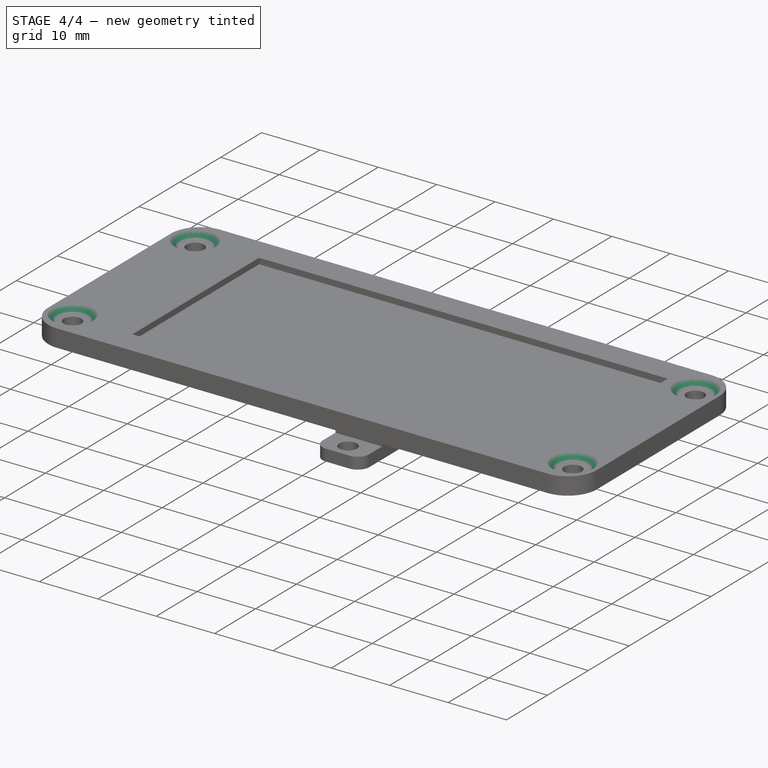
[diagram: stage 4 of 4 — iso view after this stage's code; geometry added in this stage tinted green]
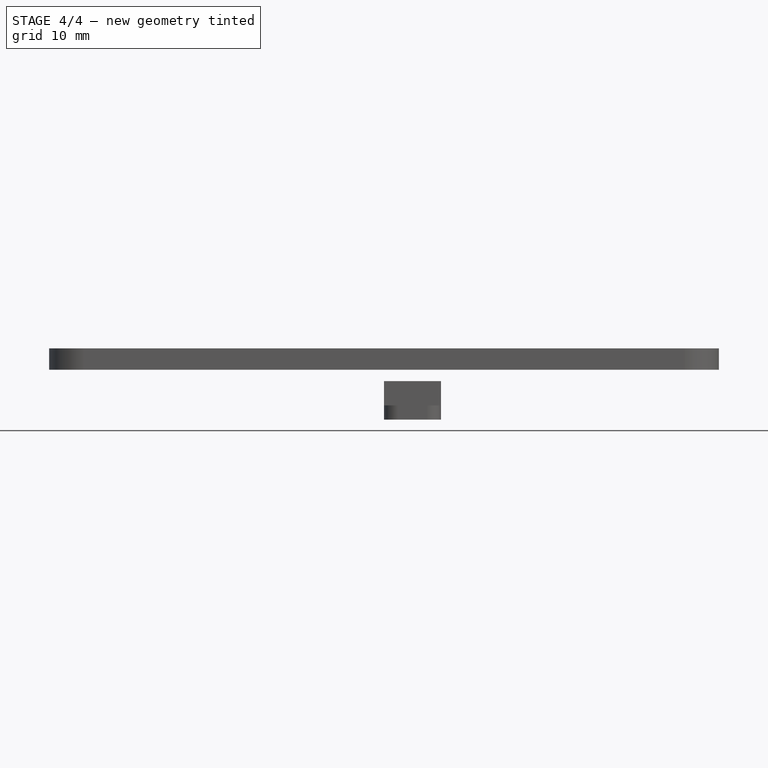
[diagram: stage 4 of 4 — front view after this stage's code; geometry added in this stage tinted green]
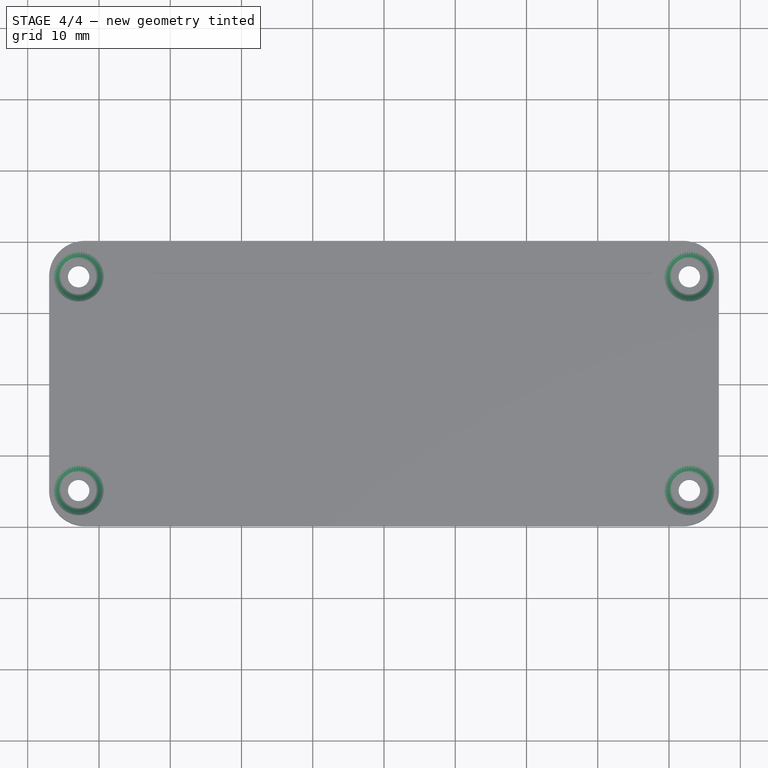
[diagram: stage 4 of 4 — top view after this stage's code; geometry added in this stage tinted green]
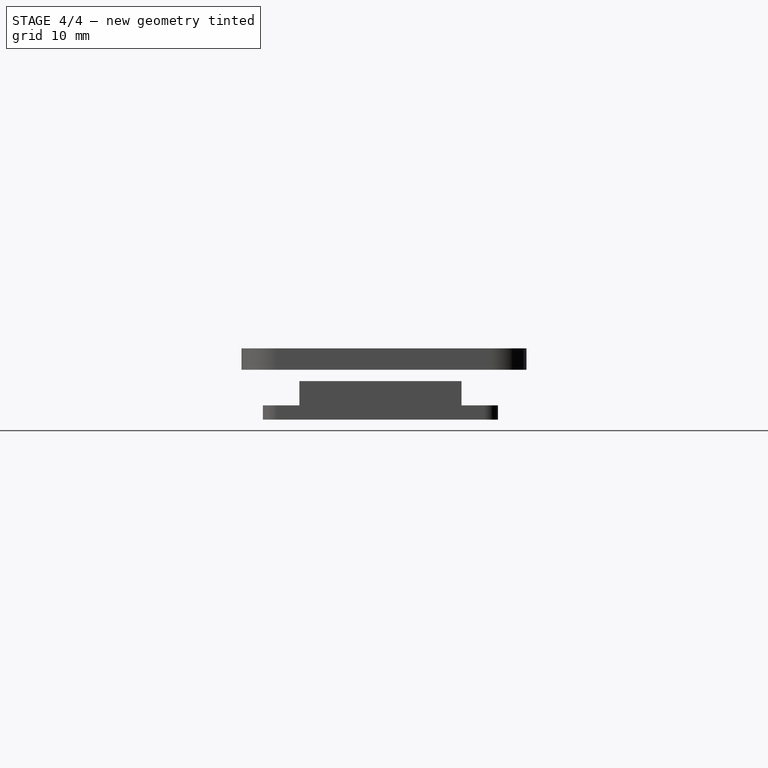
[diagram: stage 4 of 4 — right view after this stage's code; geometry added in this stage tinted green]
FEATURE [PartDesign::Fillet] Fillet
  Base = -> Pocket [Edge5,Edge1,Edge8,Edge2]
  BaseFeature = -> Pocket
  Radius = 5
  SupportTransform = false
FEATURE [PartDesign::Chamfer] Chamfer
  Angle = 45
  Base = -> Fillet [Edge33,Edge34,Edge35,Edge36]
  BaseFeature = -> Fillet
  ChamferType = 0
  FlipDirection = false
  Size = 2
  Size2 = 1
  SupportTransform = false
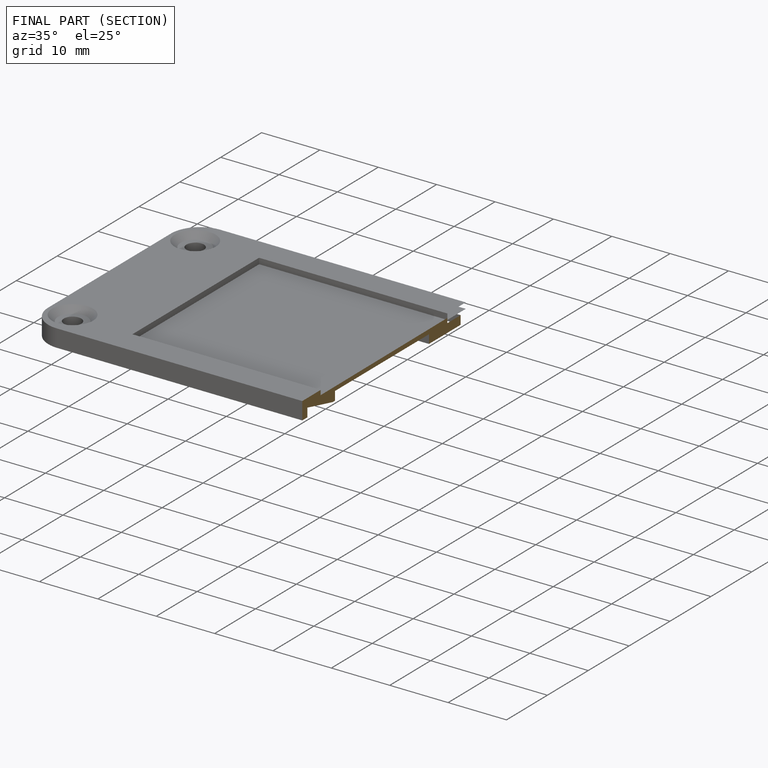
[diagram: finished part — half-section view (interior)]
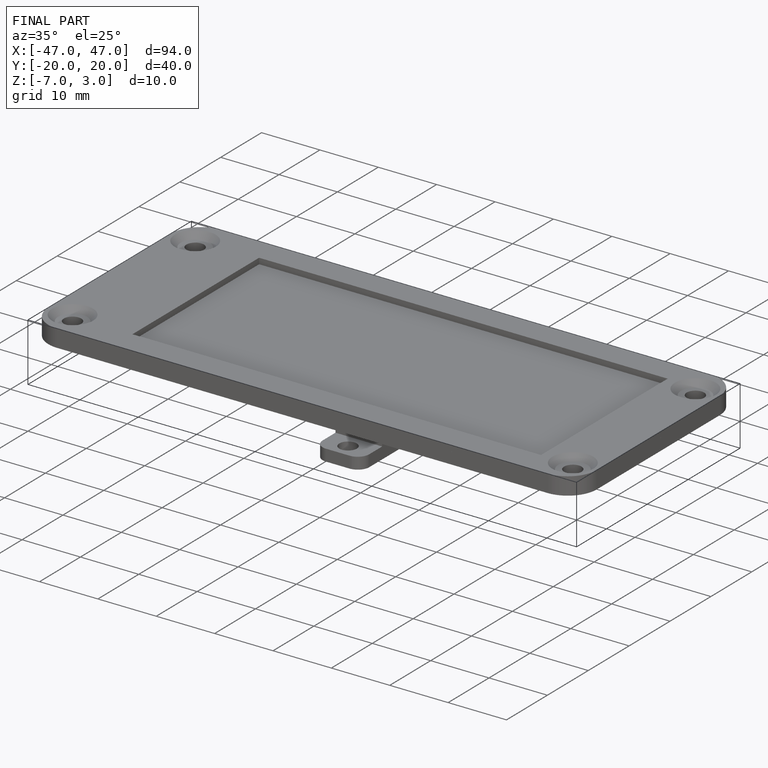
[diagram: finished part — iso view with bounding-box wireframe]
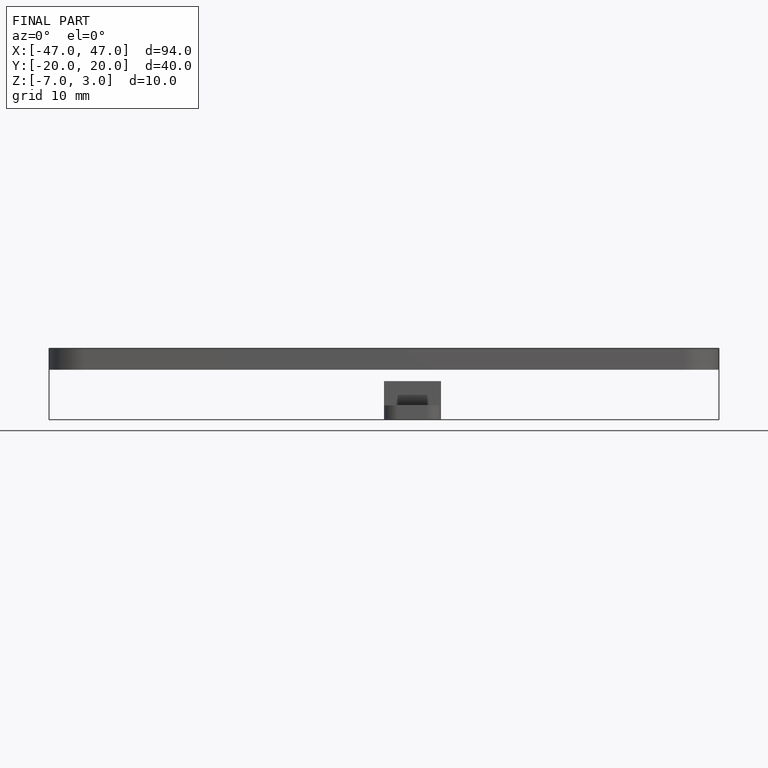
[diagram: finished part — front view with bounding-box wireframe]
